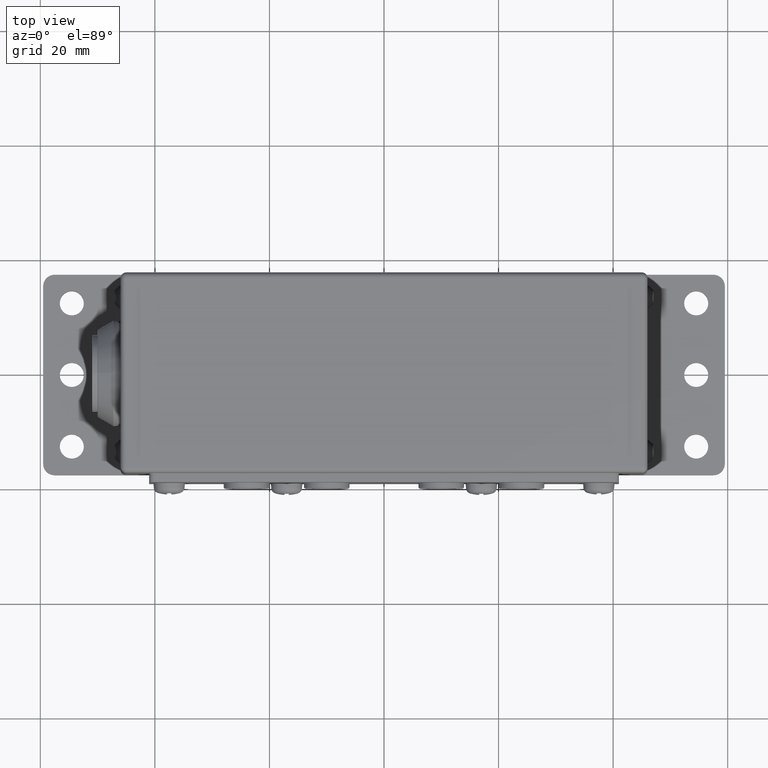
[diagram: clean part render]
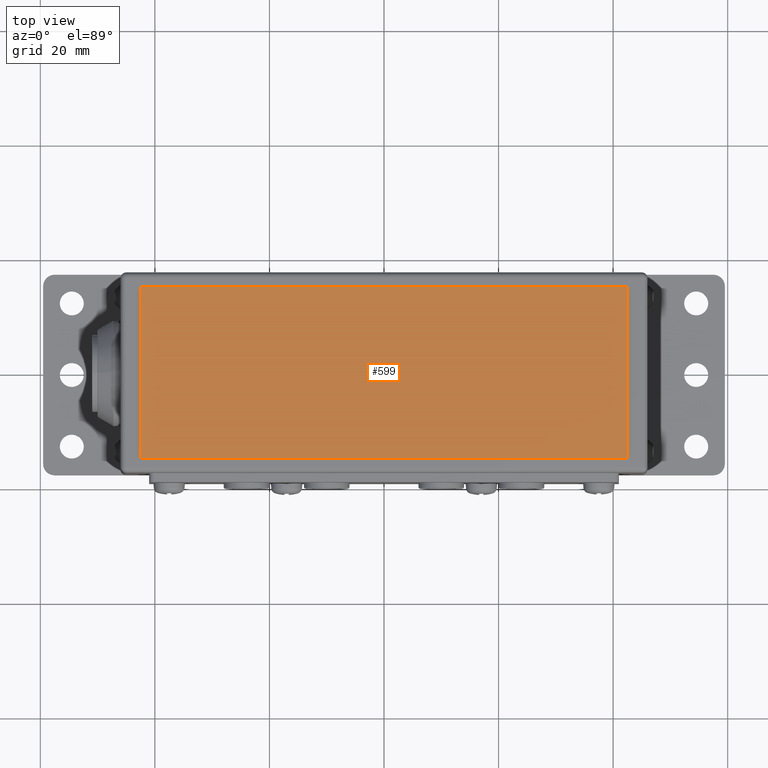
[diagram: same view with one face highlighted and labeled with its STEP entity id]
A machine part, top view. The second image highlights one B-rep face of the part: STEP entity #599.
In plain terms, the highlighted planar face has unit normal (0, 0, -1).
Its self-contained STEP definition (entity closure, byte-faithful):
#599 = ADVANCED_FACE( '', ( #1448 ), #1449, .F. );
#1448 = FACE_OUTER_BOUND( '', #2569, .T. );
#1449 = PLANE( '', #2570 );
#2569 = EDGE_LOOP( '', ( #4279, #4280, #4281, #4282 ) );
#2570 = AXIS2_PLACEMENT_3D( '', #4283, #4284, #4285 );
#4279 = ORIENTED_EDGE( '', *, *, #6444, .F. );
#4280 = ORIENTED_EDGE( '', *, *, #6445, .F. );
#4281 = ORIENTED_EDGE( '', *, *, #6326, .F. );
#4282 = ORIENTED_EDGE( '', *, *, #6446, .F. );
#4283 = CARTESIAN_POINT( '', ( -42.5000000000001, 15.0000000000000, 0.100000000000000 ) );
#4284 = DIRECTION( '', ( 0.000000000000000, 0.000000000000000, -1.00000000000000 ) );
#4285 = DIRECTION( '', ( 0.000000000000000, 1.00000000000000, 0.000000000000000 ) );
#6326 = EDGE_CURVE( '', #7623, #7625, #7626, .T. );
#6444 = EDGE_CURVE( '', #7811, #7812, #7813, .T. );
#6445 = EDGE_CURVE( '', #7625, #7811, #7814, .T. );
#6446 = EDGE_CURVE( '', #7812, #7623, #7815, .T. );
#7623 = VERTEX_POINT( '', #9336 );
#7625 = VERTEX_POINT( '', #9339 );
#7626 = LINE( '', #9340, #9341 );
#7811 = VERTEX_POINT( '', #9582 );
#7812 = VERTEX_POINT( '', #9583 );
#7813 = LINE( '', #9584, #9585 );
#7814 = LINE( '', #9586, #9587 );
#7815 = LINE( '', #9588, #9589 );
#9336 = CARTESIAN_POINT( '', ( 42.5000000000000, 15.0000000000000, 0.100000000000000 ) );
#9339 = CARTESIAN_POINT( '', ( 42.5000000000000, -15.0000000000000, 0.100000000000000 ) );
#9340 = CARTESIAN_POINT( '', ( 42.5000000000000, 15.0000000000000, 0.100000000000000 ) );
#9341 = VECTOR( '', #10929, 1000.00000000000 );
#9582 = CARTESIAN_POINT( '', ( -42.5000000000001, -15.0000000000000, 0.100000000000000 ) );
#9583 = CARTESIAN_POINT( '', ( -42.5000000000001, 15.0000000000000, 0.100000000000000 ) );
#9584 = CARTESIAN_POINT( '', ( -42.5000000000001, -15.0000000000000, 0.100000000000000 ) );
#9585 = VECTOR( '', #11091, 1000.00000000000 );
#9586 = CARTESIAN_POINT( '', ( 42.5000000000000, -15.0000000000000, 0.100000000000000 ) );
#9587 = VECTOR( '', #11092, 1000.00000000000 );
#9588 = CARTESIAN_POINT( '', ( -42.5000000000001, 15.0000000000000, 0.100000000000000 ) );
#9589 = VECTOR( '', #11093, 1000.00000000000 );
#10929 = DIRECTION( '', ( 0.000000000000000, -1.00000000000000, 0.000000000000000 ) );
#11091 = DIRECTION( '', ( -0.000000000000000, 1.00000000000000, -0.000000000000000 ) );
#11092 = DIRECTION( '', ( -1.00000000000000, 0.000000000000000, 0.000000000000000 ) );
#11093 = DIRECTION( '', ( 1.00000000000000, -0.000000000000000, 0.000000000000000 ) );